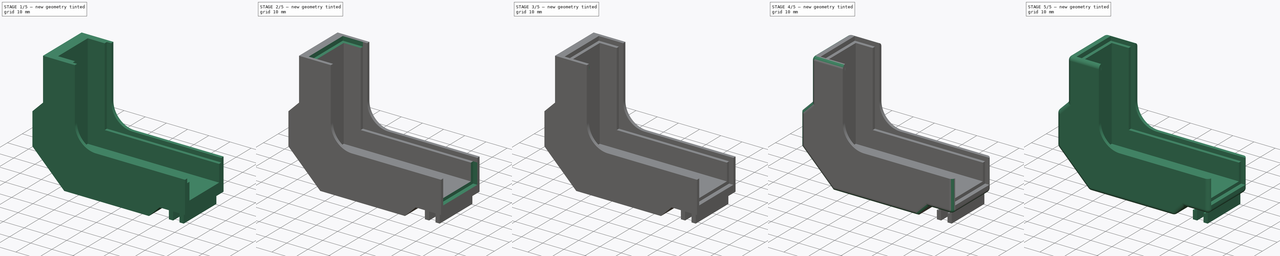
[diagram: build sequence overview — one tinted view per stage of 5, left to right]
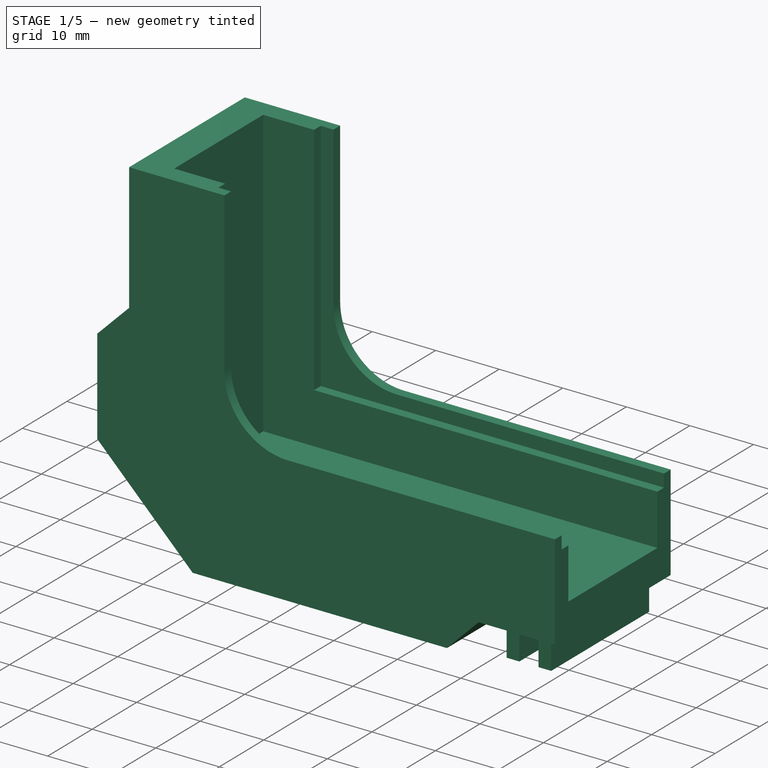
[diagram: stage 1 of 5 — iso view after this stage's code; geometry added in this stage tinted green]
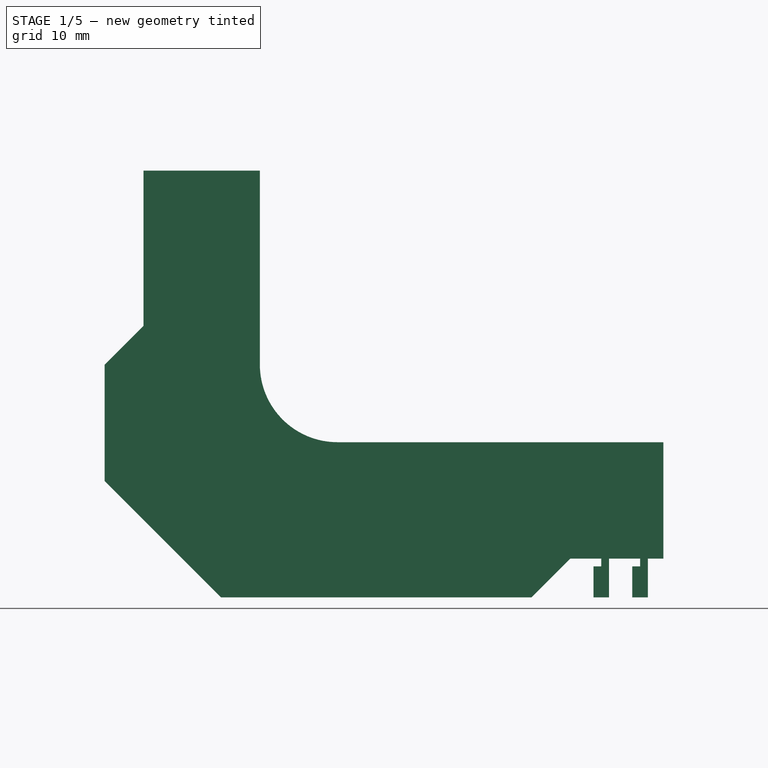
[diagram: stage 1 of 5 — front view after this stage's code; geometry added in this stage tinted green]
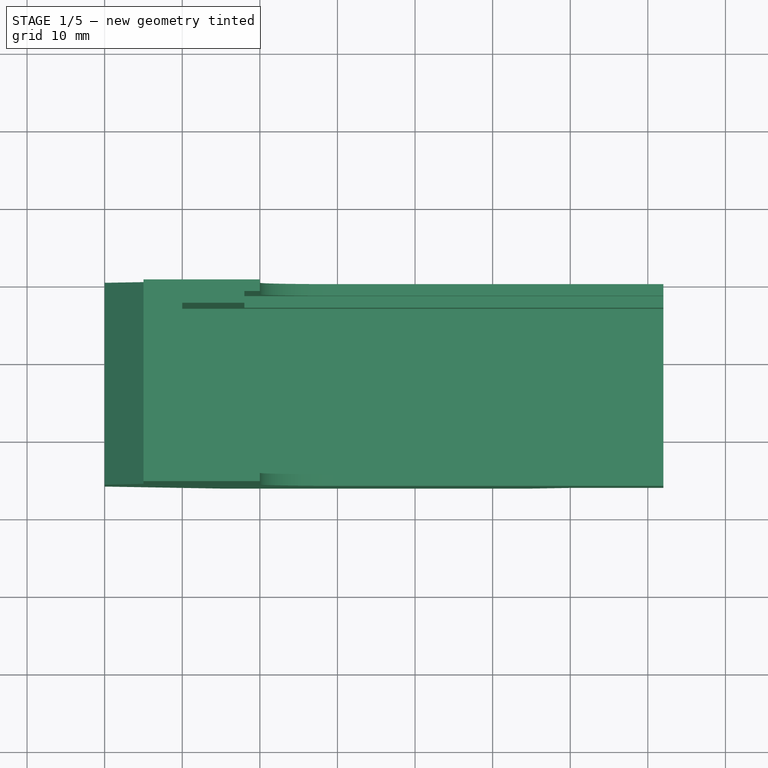
[diagram: stage 1 of 5 — top view after this stage's code; geometry added in this stage tinted green]
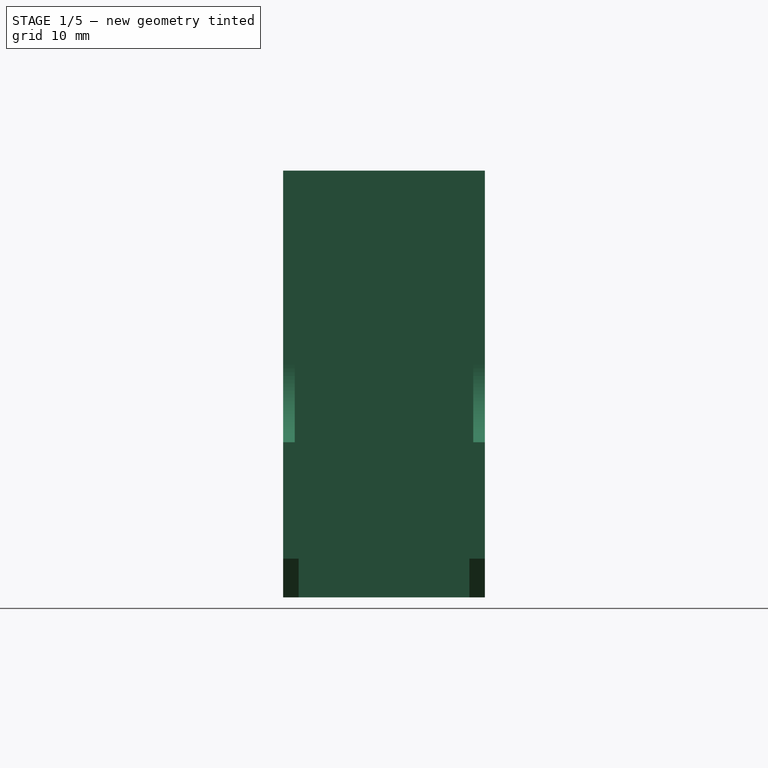
[diagram: stage 1 of 5 — right view after this stage's code; geometry added in this stage tinted green]
FCSTD DOCUMENT  (FreeCAD 0.14R2935 (Git))
Label: shell_corner10n_xrot
License: CC-BY 3.0
LicenseURL: http://creativecommons.org/licenses/by/3.0/
objects: Sketcher::SketchObject×15, PartDesign::Pocket×13, PartDesign::Fillet×8, PartDesign::Pad×1
note: 51 computed .brp shape members not serialized (recipe doc carries the construction recipe); baked Part::Feature solids carry a one-line shape summary decoded from their .brp

FEATURE [Sketcher::SketchObject] Sketch
  Placement = pos=(0,0,0) rot=(1,0,0;1.5708rad)
  sketch-geometry (25):
    g0: LineSegment StartX=5 StartY=55 StartZ=0 EndX=20 EndY=55 EndZ=0
    g1: LineSegment StartX=20 StartY=55 StartZ=0 EndX=20 EndY=30 EndZ=0
    g2: LineSegment StartX=30 StartY=20 StartZ=0 EndX=60 EndY=20 EndZ=0
    g3: LineSegment StartX=60 StartY=5 StartZ=0 EndX=55 EndY=0 EndZ=0
    g4: LineSegment StartX=55 StartY=0 StartZ=0 EndX=15 EndY=0 EndZ=0
    g5: LineSegment StartX=15 StartY=0 StartZ=0 EndX=0 EndY=15 EndZ=0
    g6: LineSegment StartX=0 StartY=15 StartZ=0 EndX=0 EndY=30 EndZ=0
    g7: LineSegment StartX=0 StartY=30 StartZ=0 EndX=5 EndY=35 EndZ=0
    g8: LineSegment StartX=5 StartY=35 StartZ=0 EndX=5 EndY=55 EndZ=0
    g9: ArcOfCircle CenterX=30 CenterY=30 CenterZ=0 NormalX=0 NormalY=0 NormalZ=1 Radius=10 StartAngle=3.14159 EndAngle=4.71239
    g10: LineSegment StartX=60 StartY=20 StartZ=0 EndX=72 EndY=20 EndZ=0
    g11: LineSegment StartX=72 StartY=20 StartZ=0 EndX=72 EndY=5 EndZ=0
    g12: LineSegment StartX=72 StartY=5 StartZ=0 EndX=70 EndY=5 EndZ=0
    g13: LineSegment StartX=60 StartY=5 StartZ=0 EndX=64 EndY=5 EndZ=0
    g14: LineSegment StartX=65 StartY=5 StartZ=0 EndX=65 EndY=0 EndZ=0
    g15: LineSegment StartX=65 StartY=0 StartZ=0 EndX=63 EndY=0 EndZ=0
    g16: LineSegment StartX=63 StartY=0 StartZ=0 EndX=63 EndY=4 EndZ=0
    g17: LineSegment StartX=63 StartY=4 StartZ=0 EndX=64 EndY=4 EndZ=0
    g18: LineSegment StartX=64 StartY=5 StartZ=0 EndX=64 EndY=4 EndZ=0
    g19: LineSegment StartX=70 StartY=5 StartZ=0 EndX=70 EndY=0 EndZ=0
    g20: LineSegment StartX=70 StartY=0 StartZ=0 EndX=68 EndY=0 EndZ=0
    g21: LineSegment StartX=68 StartY=0 StartZ=0 EndX=68 EndY=4 EndZ=0
    g22: LineSegment StartX=69 StartY=5 StartZ=0 EndX=69 EndY=4 EndZ=0
    g23: LineSegment StartX=68 StartY=4 StartZ=0 EndX=69 EndY=4 EndZ=0
    g24: LineSegment StartX=65 StartY=5 StartZ=0 EndX=69 EndY=5 EndZ=0
  constraints (76):
    c: Coincident(g0,g1)
    c: Coincident(g3,g4)
    c: Coincident(g4,g5)
    c: Coincident(g5,g6)
    c: Coincident(g6,g7)
    c: Coincident(g7,g8)
    c: Coincident(g8,g0)
    c: DistanceY(g-1,g5) = 15
    c: DistanceX(g-1,g4) = 15
    c: DistanceX(g4,g3) = 40
    c: DistanceX(g3,g3) = 5
    c: DistanceY(g3,g3) = 5
    c: DistanceY(g3,g13) = 5
    c: DistanceY(g6) = 15
    c: DistanceX(g6,g7) = 5
    c: DistanceY(g6,g7) = 5
    c: DistanceY(g8) = 20
    c: DistanceX(g0) = 15
    c: DistanceX(g5,g4) = 15
    c: DistanceY(g4,g5) = 15
    c: DistanceY(g-1,g3) = 5
    c: DistanceX(g-1,g2) = 60
    c: DistanceX(g-1,g0) = 20
    c: DistanceX(g-1,g7) = 5
    c: Tangent(g1,g9)
    c: Tangent(g2,g9)
    c: DistanceY(g2,g9) = 10
    c: DistanceX(g1,g9) = 10
    c: DistanceX(g9,g0) = -10
    c: DistanceY(g0,g1) = -25
    c: Coincident(g10,g11)
    c: Coincident(g11,g12)
    c: Horizontal(g10)
    c: Horizontal(g12)
    c: Vertical(g11)
    c: Horizontal(g13)
    c: DistanceX(g13) = 4
    c: Coincident(g14,g15)
    c: Coincident(g15,g16)
    c: Horizontal(g15)
    c: Vertical(g14)
    c: Vertical(g16)
    c: DistanceX(g15) = -2
    c: DistanceY(g16) = 4
    c: DistanceY(g14) = -5
    c: Horizontal(g17)
    c: DistanceX(g17) = 1
    c: Coincident(g17,g16)
    c: Vertical(g18)
    c: DistanceY(g18) = -1
    c: Coincident(g18,g17)
    c: Coincident(g18,g13)
    c: Coincident(g13,g3)
    c: Coincident(g19,g20)
    c: Coincident(g20,g21)
    c: Horizontal(g20)
    c: Vertical(g19)
    c: Vertical(g21)
    c: DistanceX(g20) = -2
    c: DistanceY(g21) = 4
    c: DistanceY(g19) = -5
    c: Vertical(g22)
    c: DistanceY(g22) = -1
    c: Horizontal(g23)
    c: DistanceX(g23) = 1
    c: Coincident(g22,g23)
    c: Coincident(g23,g21)
    c: Horizontal(g24)
    c: DistanceX(g24) = 4
    c: Coincident(g24,g14)
    c: Coincident(g22,g24)
    c: DistanceX(g12) = -2
    c: DistanceX(g10) = 12
    c: Coincident(g10,g2)
    c: Coincident(g12,g19)
    c: DistanceY(g11) = -15
FEATURE [PartDesign::Pad] Pad
  Length = 26
  Length2 = 100
  Placement = pos=(0,0,0) rot=(1,0,0;1.5708rad)
  Sketch = -> Sketch
  Type = 0
FEATURE [Sketcher::SketchObject] Sketch001
  Placement = pos=(0,0,0) rot=(1,0,0;3.14159rad)
  Support = -> Pad [Face15]
  sketch-geometry (8):
    g0: LineSegment StartX=62 StartY=2 StartZ=0 EndX=70 EndY=2 EndZ=0
    g1: LineSegment StartX=70 StartY=2 StartZ=0 EndX=70 EndY=-2 EndZ=0
    g2: LineSegment StartX=70 StartY=-2 StartZ=0 EndX=62 EndY=-2 EndZ=0
    g3: LineSegment StartX=62 StartY=-2 StartZ=0 EndX=62 EndY=2 EndZ=0
    g4: LineSegment StartX=62 StartY=28 StartZ=0 EndX=70 EndY=28 EndZ=0
    g5: LineSegment StartX=70 StartY=28 StartZ=0 EndX=70 EndY=24 EndZ=0
    g6: LineSegment StartX=70 StartY=24 StartZ=0 EndX=62 EndY=24 EndZ=0
    g7: LineSegment StartX=62 StartY=24 StartZ=0 EndX=62 EndY=28 EndZ=0
  constraints (24):
    c: Coincident(g0,g1)
    c: Coincident(g1,g2)
    c: Coincident(g2,g3)
    c: Coincident(g3,g0)
    c: Horizontal(g0)
    c: Horizontal(g2)
    c: Vertical(g1)
    c: Vertical(g3)
    c: DistanceX(g0) = 8
    c: DistanceY(g3) = 4
    c: DistanceX(g-1,g0) = 62
    c: DistanceY(g-1,g0) = 2
    c: Coincident(g4,g5)
    c: Coincident(g5,g6)
    c: Coincident(g6,g7)
    c: Coincident(g7,g4)
    c: Horizontal(g4)
    c: Horizontal(g6)
    c: Vertical(g5)
    c: Vertical(g7)
    c: DistanceX(g4) = 8
    c: DistanceY(g7) = 4
    c: DistanceX(g-1,g6) = 62
    c: DistanceY(g-1,g6) = 24
FEATURE [PartDesign::Pocket] Pocket
  Length = 5
  Placement = pos=(0,0,0) rot=(1,0,0;1.5708rad)
  Sketch = -> Sketch001
  Type = 0
FEATURE [Sketcher::SketchObject] Sketch002
  Placement = pos=(72,0,0) rot=(0.707107,0,0.707107;3.14159rad)
  Support = -> Pocket [Face18]
  sketch-geometry (4):
    g0: LineSegment StartX=10 StartY=23 StartZ=0 EndX=70 EndY=23 EndZ=0
    g1: LineSegment StartX=70 StartY=23 StartZ=0 EndX=70 EndY=3 EndZ=0
    g2: LineSegment StartX=70 StartY=3 StartZ=0 EndX=10 EndY=3 EndZ=0
    g3: LineSegment StartX=10 StartY=3 StartZ=0 EndX=10 EndY=23 EndZ=0
  constraints (12):
    c: Coincident(g0,g1)
    c: Coincident(g1,g2)
    c: Coincident(g2,g3)
    c: Coincident(g3,g0)
    c: Horizontal(g0)
    c: Horizontal(g2)
    c: Vertical(g1)
    c: Vertical(g3)
    c: DistanceY(g3) = 20
    c: DistanceX(g0) = 60
    c: DistanceY(g-1,g2) = 3
    c: DistanceX(g-1,g2) = 10
FEATURE [PartDesign::Pocket] Pocket001
  Length = 62
  Placement = pos=(0,0,0) rot=(1,0,0;1.5708rad)
  Sketch = -> Sketch002
  Type = 0
FEATURE [Sketcher::SketchObject] Sketch003
  Placement = pos=(72,0,0) rot=(0.707107,0,0.707107;3.14159rad)
  Support = -> Pocket001 [Face18]
  sketch-geometry (4):
    g0: LineSegment StartX=18 StartY=24.5 StartZ=0 EndX=58 EndY=24.5 EndZ=0
    g1: LineSegment StartX=58 StartY=24.5 StartZ=0 EndX=58 EndY=1.5 EndZ=0
    g2: LineSegment StartX=58 StartY=1.5 StartZ=0 EndX=18 EndY=1.5 EndZ=0
    g3: LineSegment StartX=18 StartY=1.5 StartZ=0 EndX=18 EndY=24.5 EndZ=0
  constraints (12):
    c: Coincident(g0,g1)
    c: Coincident(g1,g2)
    c: Coincident(g2,g3)
    c: Coincident(g3,g0)
    c: Horizontal(g0)
    c: Horizontal(g2)
    c: Vertical(g1)
    c: Vertical(g3)
    c: DistanceX(g0) = 40
    c: DistanceY(g3) = 23
    c: DistanceX(g-1,g2) = 18
    c: DistanceY(g-1,g2) = 1.5
FEATURE [PartDesign::Pocket] Pocket002
  Length = 54
  Placement = pos=(0,0,0) rot=(1,0,0;1.5708rad)
  Sketch = -> Sketch003
  Type = 0
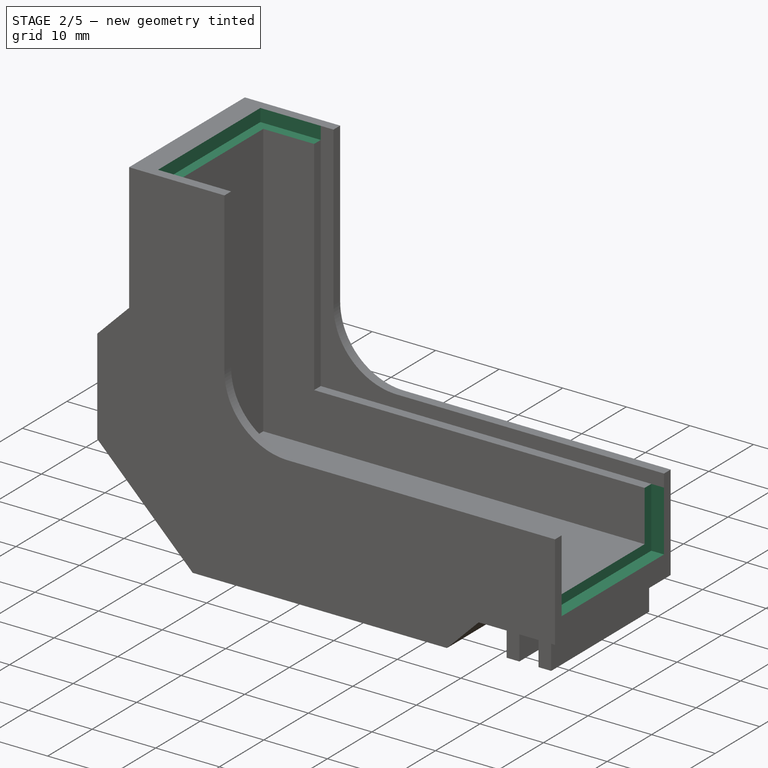
[diagram: stage 2 of 5 — iso view after this stage's code; geometry added in this stage tinted green]
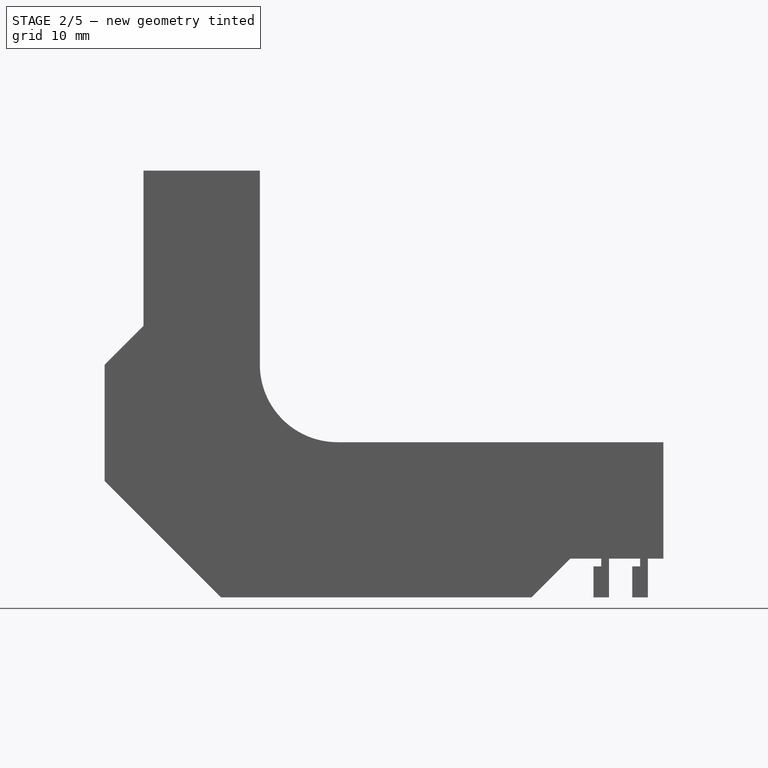
[diagram: stage 2 of 5 — front view after this stage's code; geometry added in this stage tinted green]
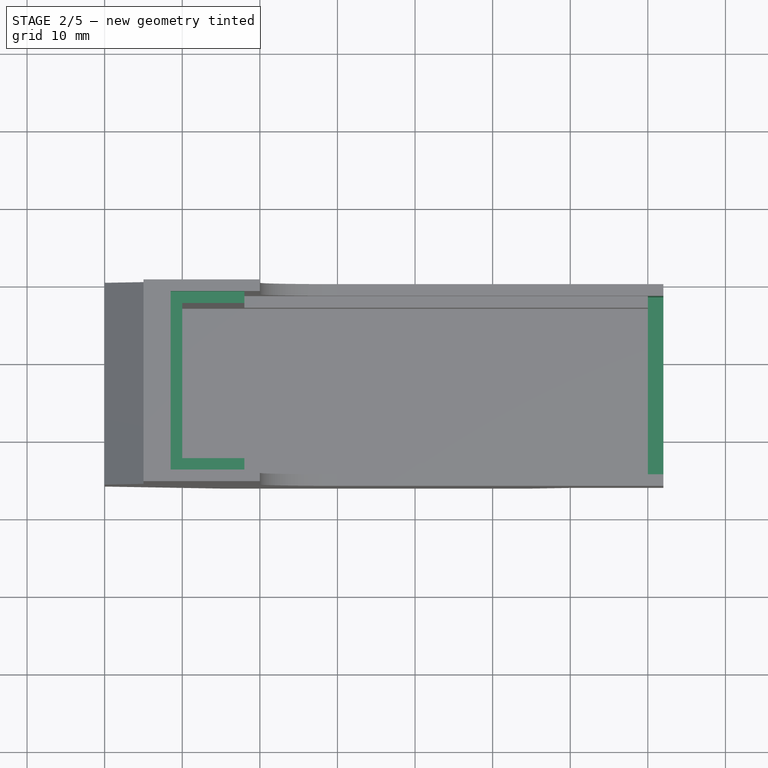
[diagram: stage 2 of 5 — top view after this stage's code; geometry added in this stage tinted green]
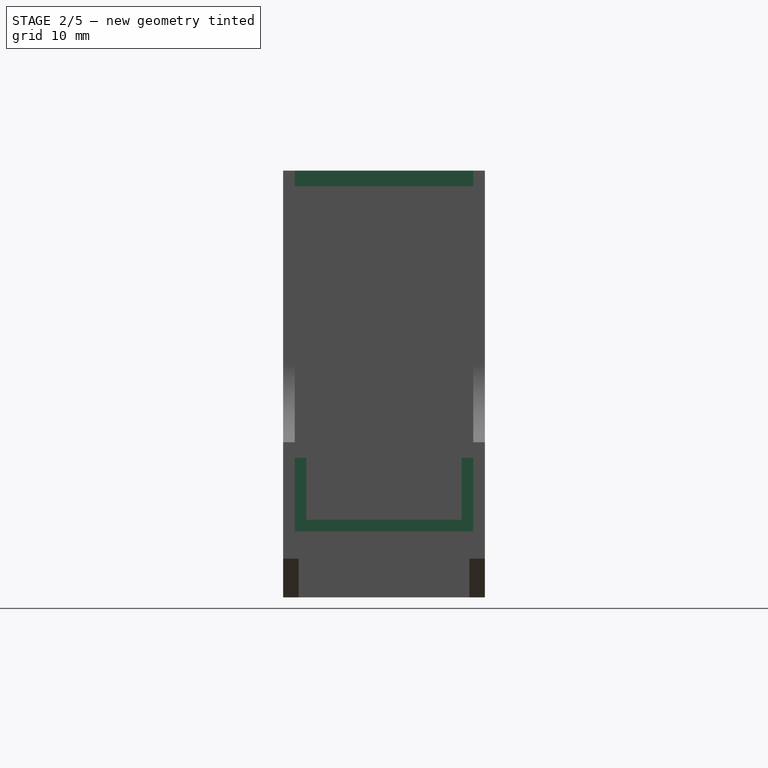
[diagram: stage 2 of 5 — right view after this stage's code; geometry added in this stage tinted green]
FEATURE [Sketcher::SketchObject] Sketch004
  Placement = pos=(72,0,0) rot=(0.707107,0,0.707107;3.14159rad)
  Support = -> Pocket002 [Face18]
  sketch-geometry (4):
    g0: LineSegment StartX=8.5 StartY=24.5 StartZ=0 EndX=28.5 EndY=24.5 EndZ=0
    g1: LineSegment StartX=28.5 StartY=24.5 StartZ=0 EndX=28.5 EndY=1.5 EndZ=0
    g2: LineSegment StartX=28.5 StartY=1.5 StartZ=0 EndX=8.5 EndY=1.5 EndZ=0
    g3: LineSegment StartX=8.5 StartY=1.5 StartZ=0 EndX=8.5 EndY=24.5 EndZ=0
  constraints (12):
    c: Coincident(g0,g1)
    c: Coincident(g1,g2)
    c: Coincident(g2,g3)
    c: Coincident(g3,g0)
    c: Horizontal(g0)
    c: Horizontal(g2)
    c: Vertical(g1)
    c: Vertical(g3)
    c: DistanceY(g3) = 23
    c: DistanceY(g-1,g2) = 1.5
    c: DistanceX(g-1,g2) = 8.5
    c: DistanceX(g0) = 20
FEATURE [PartDesign::Pocket] Pocket003
  Length = 2
  Placement = pos=(0,0,0) rot=(1,0,0;1.5708rad)
  Sketch = -> Sketch004
  Type = 0
FEATURE [Sketcher::SketchObject] Sketch005
  Placement = pos=(-1.68699e-05,0,55) rot=(0,0,1;3.14159rad)
  Support = -> Pocket003 [Face13]
  sketch-geometry (4):
    g0: LineSegment StartX=-28.5 StartY=24.5 StartZ=0 EndX=-8.5 EndY=24.5 EndZ=0
    g1: LineSegment StartX=-8.5 StartY=24.5 StartZ=0 EndX=-8.5 EndY=1.5 EndZ=0
    g2: LineSegment StartX=-8.5 StartY=1.5 StartZ=0 EndX=-28.5 EndY=1.5 EndZ=0
    g3: LineSegment StartX=-28.5 StartY=1.5 StartZ=0 EndX=-28.5 EndY=24.5 EndZ=0
  constraints (12):
    c: Coincident(g0,g1)
    c: Coincident(g1,g2)
    c: Coincident(g2,g3)
    c: Coincident(g3,g0)
    c: Horizontal(g0)
    c: Horizontal(g2)
    c: Vertical(g1)
    c: Vertical(g3)
    c: DistanceY(g1) = -23
    c: DistanceX(g0) = 20
    c: DistanceX(g-1,g1) = -8.5
    c: DistanceY(g-1,g1) = 1.5
FEATURE [PartDesign::Pocket] Pocket004
  Length = 2
  Placement = pos=(0,0,0) rot=(1,0,0;1.5708rad)
  Sketch = -> Sketch005
  Type = 0
FEATURE [Sketcher::SketchObject] Sketch006
  Placement = pos=(5,0,0) rot=(0.707107,0,-0.707107;3.14159rad)
  Support = -> Pocket004 [Face12]
  sketch-geometry (1):
    g0: Circle CenterX=-45 CenterY=13 CenterZ=0 NormalX=0 NormalY=0 NormalZ=1 Radius=6
  constraints (3):
    c: DistanceY(g-1,g0) = 13
    c: DistanceX(g-1,g0) = -45
    c: Radius(g0) = 6
FEATURE [PartDesign::Pocket] Pocket005
  Length = 3
  Placement = pos=(0,0,0) rot=(1,0,0;1.5708rad)
  Sketch = -> Sketch006
  Type = 0
FEATURE [Sketcher::SketchObject] Sketch007
  Placement = pos=(70,0,0) rot=(0.707107,0,0.707107;3.14159rad)
  Support = -> Pocket005 [Face57]
FEATURE [Sketcher::SketchObject] Sketch008
  Placement = pos=(70,0,0) rot=(0.707107,0,0.707107;3.14159rad)
  Support = -> Pocket005 [Face57]
  sketch-geometry (1):
    g0: Circle CenterX=45 CenterY=13 CenterZ=0 NormalX=0 NormalY=0 NormalZ=1 Radius=3
  constraints (3):
    c: DistanceY(g-1,g0) = 13
    c: Radius(g0) = 3
    c: DistanceX(g-1,g0) = 45
FEATURE [PartDesign::Pocket] Pocket006
  Length = 5
  Placement = pos=(0,0,0) rot=(1,0,0;1.5708rad)
  Sketch = -> Sketch008
  Type = 0
FEATURE [Sketcher::SketchObject] Sketch009
  Placement = pos=(0,0,0) rot=(1,0,0;3.14159rad)
  Support = -> Pocket006 [Face3]
  sketch-geometry (1):
    g0: Circle CenterX=45 CenterY=13 CenterZ=0 NormalX=0 NormalY=0 NormalZ=1 Radius=6
  constraints (3):
    c: DistanceX(g-1,g0) = 45
    c: DistanceY(g-1,g0) = 13
    c: Radius(g0) = 6
FEATURE [PartDesign::Pocket] Pocket007
  Length = 3
  Placement = pos=(0,0,0) rot=(1,0,0;1.5708rad)
  Sketch = -> Sketch009
  Type = 0
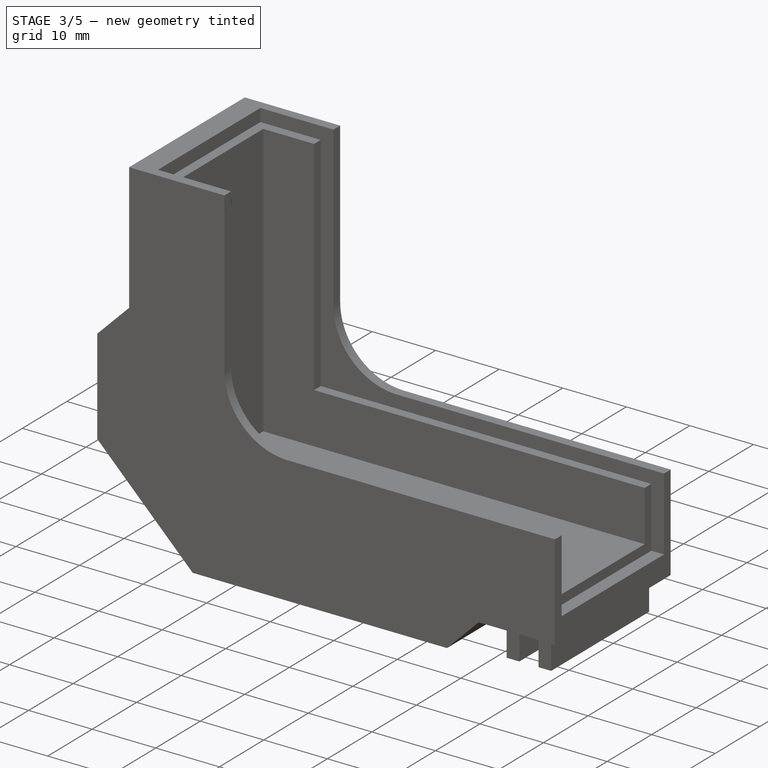
[diagram: stage 3 of 5 — iso view after this stage's code; geometry added in this stage tinted green]
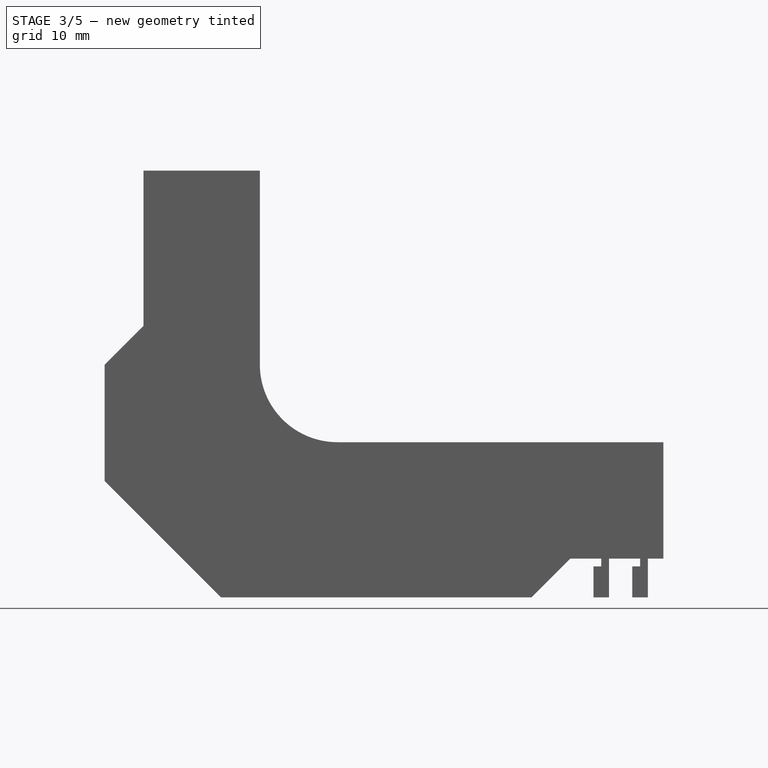
[diagram: stage 3 of 5 — front view after this stage's code; geometry added in this stage tinted green]
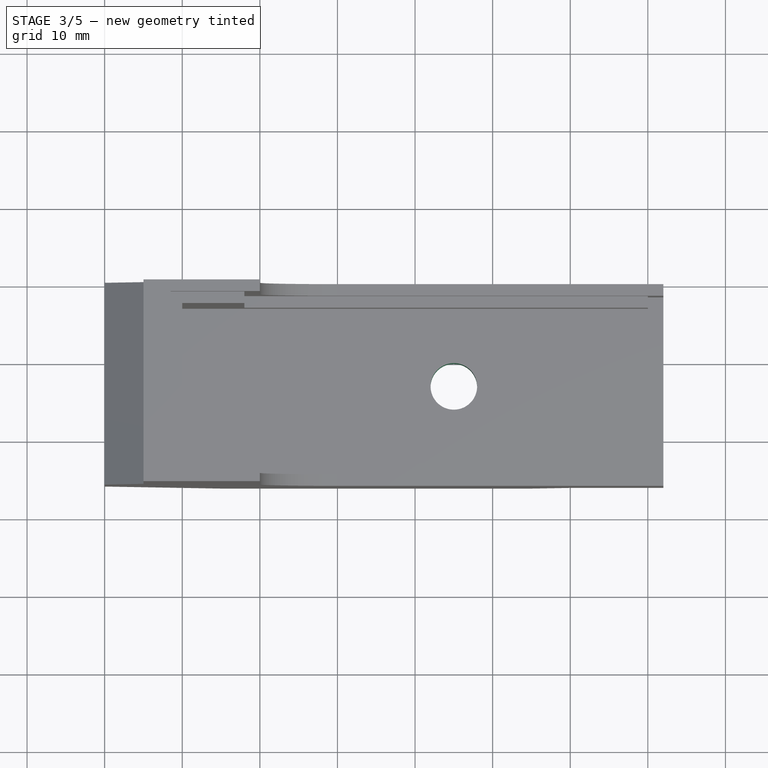
[diagram: stage 3 of 5 — top view after this stage's code; geometry added in this stage tinted green]
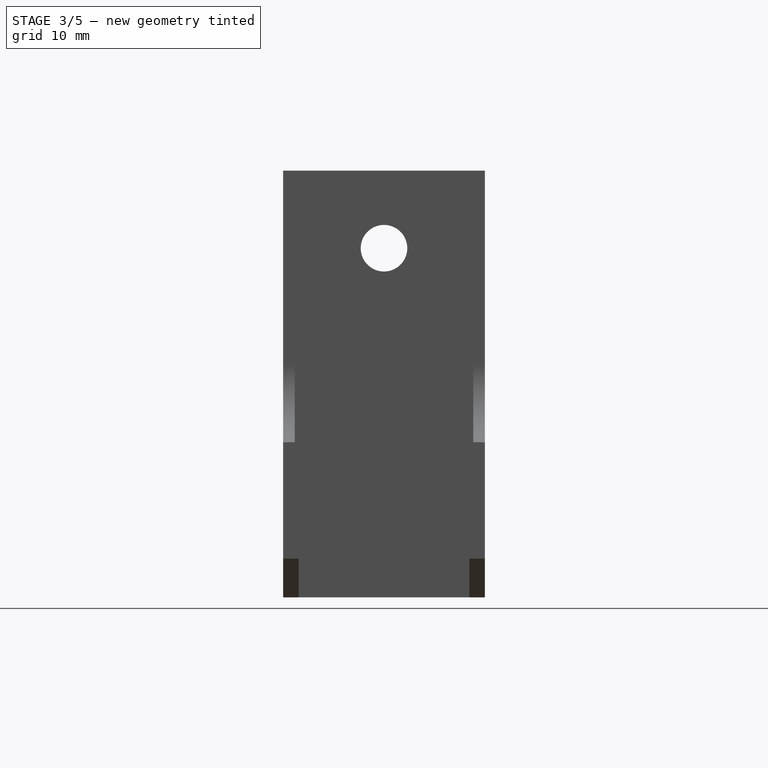
[diagram: stage 3 of 5 — right view after this stage's code; geometry added in this stage tinted green]
FEATURE [Sketcher::SketchObject] Sketch010
  Placement = pos=(0,0,3) rot=(1,0,0;3.14159rad)
  Support = -> Pocket007 [Face34]
  sketch-geometry (1):
    g0: Circle CenterX=45 CenterY=13 CenterZ=0 NormalX=0 NormalY=0 NormalZ=1 Radius=3
  constraints (3):
    c: DistanceX(g-1,g0) = 45
    c: DistanceY(g-1,g0) = 13
    c: Radius(g0) = 3
FEATURE [PartDesign::Pocket] Pocket008
  Length = 15
  Placement = pos=(0,0,0) rot=(1,0,0;1.5708rad)
  Sketch = -> Sketch010
  Type = 0
FEATURE [Sketcher::SketchObject] Sketch011
  Placement = pos=(7.5,0,7.5) rot=(0.92388,0,-0.382683;3.14159rad)
  Support = -> Pocket008 [Face9]
  sketch-geometry (4):
    g0: LineSegment StartX=-20 StartY=19 StartZ=0 EndX=20 EndY=19 EndZ=0
    g1: LineSegment StartX=20 StartY=19 StartZ=0 EndX=20 EndY=7 EndZ=0
    g2: LineSegment StartX=20 StartY=7 StartZ=0 EndX=-20 EndY=7 EndZ=0
    g3: LineSegment StartX=-20 StartY=7 StartZ=0 EndX=-20 EndY=19 EndZ=0
  constraints (12):
    c: Coincident(g0,g1)
    c: Coincident(g1,g2)
    c: Coincident(g2,g3)
    c: Coincident(g3,g0)
    c: Horizontal(g0)
    c: Horizontal(g2)
    c: Vertical(g1)
    c: Vertical(g3)
    c: DistanceY(g3) = 12
    c: DistanceY(g-1,g2) = 7
    c: DistanceX(g0,g0) = 40
    c: DistanceX(g-1,g2) = -20
FEATURE [PartDesign::Pocket] Pocket009
  Length = 2
  Placement = pos=(0,0,0) rot=(1,0,0;1.5708rad)
  Sketch = -> Sketch011
  Type = 0
FEATURE [Sketcher::SketchObject] Sketch012
  Placement = pos=(8,0,0) rot=(0.707107,0,-0.707107;3.14159rad)
  Support = -> Pocket009 [Face60]
  sketch-geometry (1):
    g0: Circle CenterX=-45 CenterY=13 CenterZ=0 NormalX=0 NormalY=0 NormalZ=1 Radius=3
  constraints (3):
    c: DistanceY(g-1,g0) = 13
    c: DistanceX(g-1,g0) = -45
    c: Radius(g0) = 3
FEATURE [PartDesign::Pocket] Pocket010
  Length = 10
  Placement = pos=(0,0,0) rot=(1,0,0;1.5708rad)
  Sketch = -> Sketch012
  Type = 0
FEATURE [Sketcher::SketchObject] Sketch013
  Placement = pos=(0,0,0) rot=(1,0,0;3.14159rad)
  Support = -> Pocket010 [Face3]
  sketch-geometry (4):
    g0: LineSegment StartX=5 StartY=19 StartZ=0 EndX=35 EndY=19 EndZ=0
    g1: LineSegment StartX=35 StartY=19 StartZ=0 EndX=35 EndY=7 EndZ=0
    g2: LineSegment StartX=35 StartY=7 StartZ=0 EndX=5 EndY=7 EndZ=0
    g3: LineSegment StartX=5 StartY=7 StartZ=0 EndX=5 EndY=19 EndZ=0
  constraints (12):
    c: Coincident(g0,g1)
    c: Coincident(g1,g2)
    c: Coincident(g2,g3)
    c: Coincident(g3,g0)
    c: Horizontal(g0)
    c: Horizontal(g2)
    c: Vertical(g1)
    c: Vertical(g3)
    c: DistanceY(g1) = -12
    c: DistanceX(g0) = 30
    c: DistanceY(g-1,g1) = 7
    c: DistanceX(g-1,g1) = 35
FEATURE [PartDesign::Pocket] Pocket011
  Length = 2
  Placement = pos=(0,0,0) rot=(1,0,0;1.5708rad)
  Sketch = -> Sketch013
  Type = 0
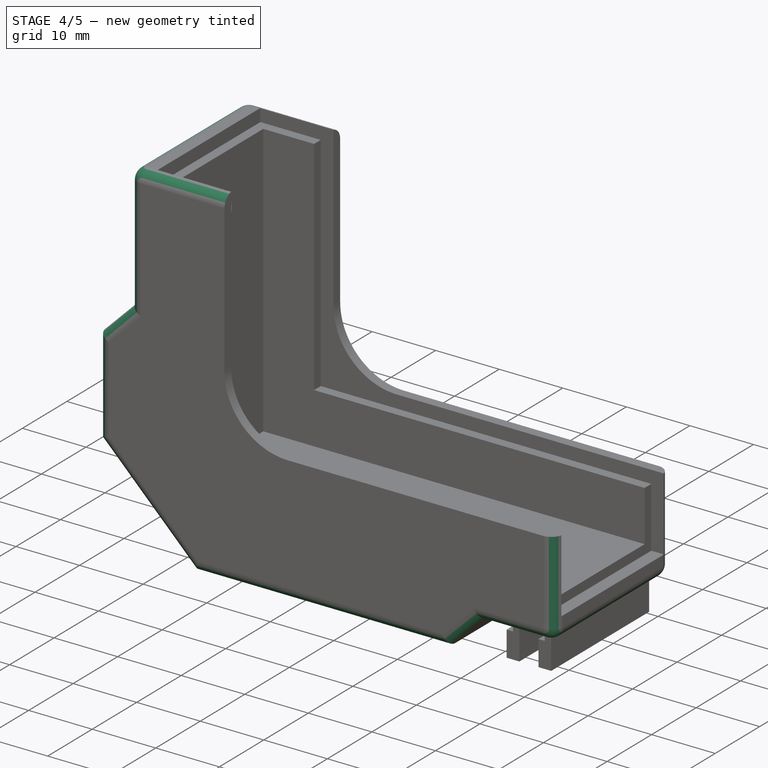
[diagram: stage 4 of 5 — iso view after this stage's code; geometry added in this stage tinted green]
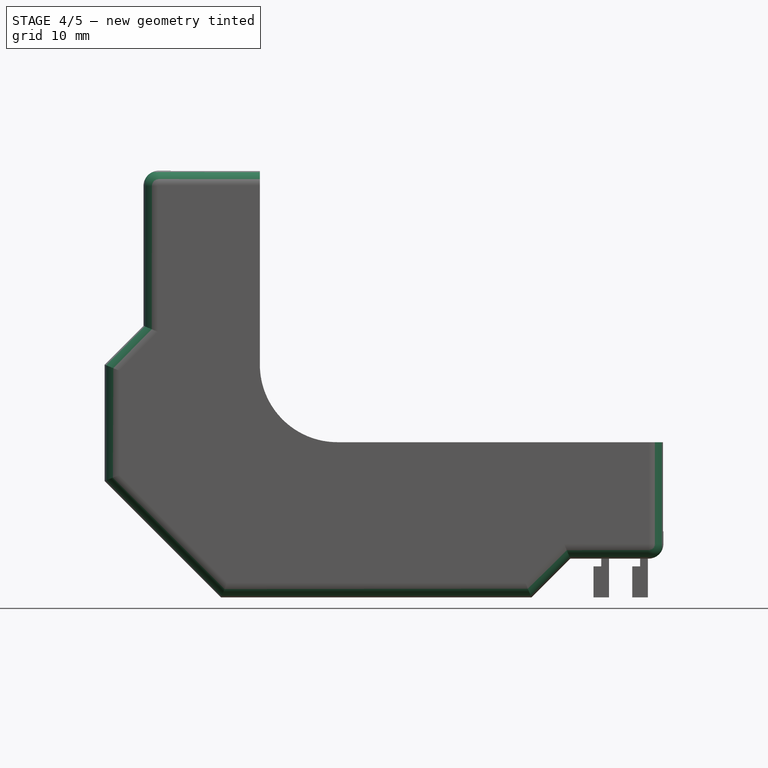
[diagram: stage 4 of 5 — front view after this stage's code; geometry added in this stage tinted green]
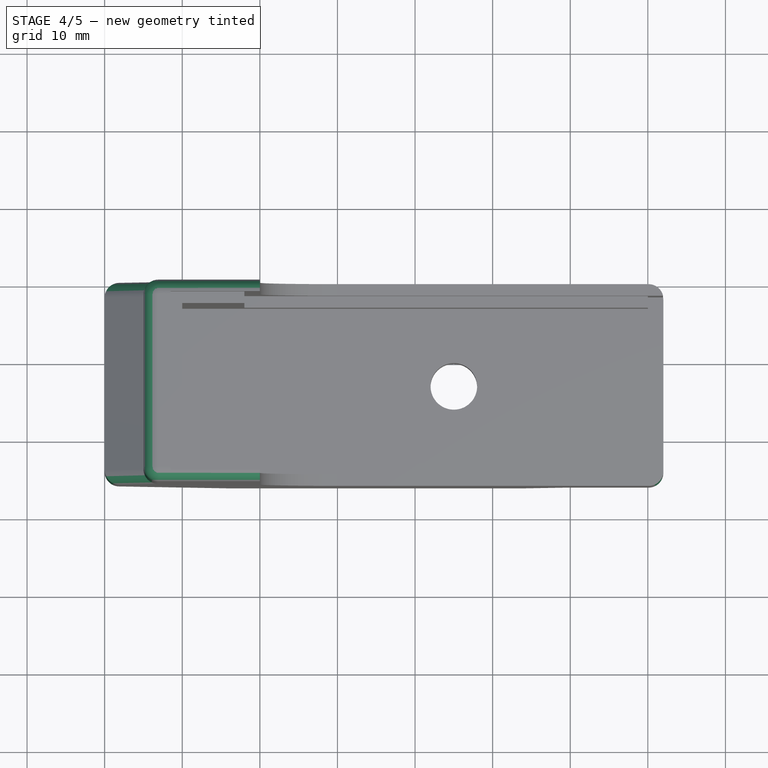
[diagram: stage 4 of 5 — top view after this stage's code; geometry added in this stage tinted green]
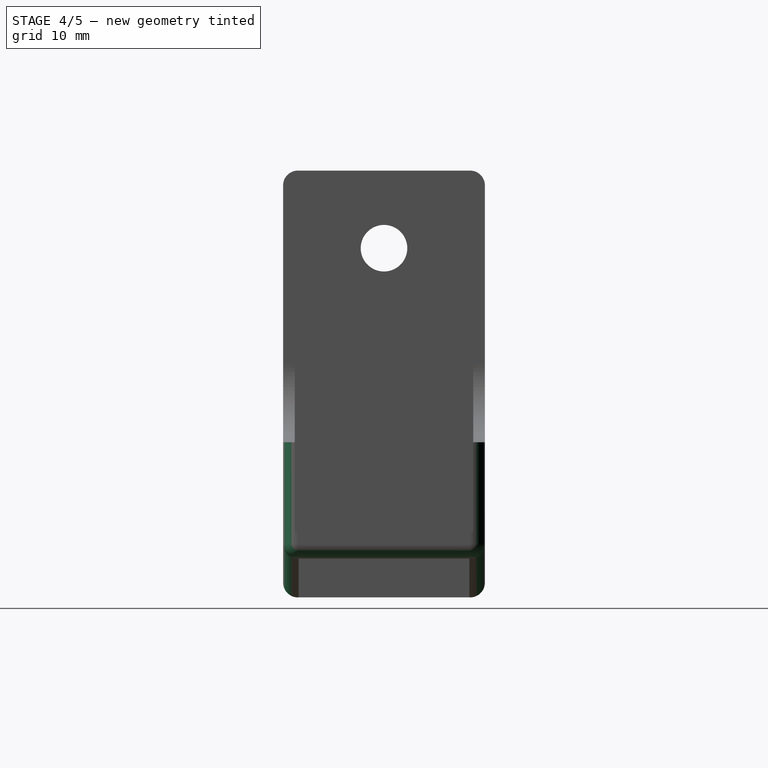
[diagram: stage 4 of 5 — right view after this stage's code; geometry added in this stage tinted green]
FEATURE [Sketcher::SketchObject] Sketch014
  Placement = pos=(0,0,0) rot=(-0.707107,0,0.707107;3.14159rad)
  Support = -> Pocket011 [Face17]
  sketch-geometry (4):
    g0: LineSegment StartX=-27 StartY=19 StartZ=0 EndX=-7 EndY=19 EndZ=0
    g1: LineSegment StartX=-7 StartY=19 StartZ=0 EndX=-7 EndY=7 EndZ=0
    g2: LineSegment StartX=-7 StartY=7 StartZ=0 EndX=-27 EndY=7 EndZ=0
    g3: LineSegment StartX=-27 StartY=7 StartZ=0 EndX=-27 EndY=19 EndZ=0
  constraints (12):
    c: Coincident(g0,g1)
    c: Coincident(g1,g2)
    c: Coincident(g2,g3)
    c: Coincident(g3,g0)
    c: Horizontal(g0)
    c: Horizontal(g2)
    c: Vertical(g1)
    c: Vertical(g3)
    c: DistanceY(g3) = 12
    c: DistanceX(g0) = 20
    c: DistanceY(g-1,g2) = 7
    c: DistanceX(g-1,g2) = -27
FEATURE [PartDesign::Pocket] Pocket012
  Length = 2
  Placement = pos=(0,0,0) rot=(1,0,0;1.5708rad)
  Sketch = -> Sketch014
  Type = 0
FEATURE [PartDesign::Fillet] Fillet
  Base = -> Pocket012 [Edge102]
  Placement = pos=(0,0,0) rot=(1,0,0;1.5708rad)
  Radius = 1.9
FEATURE [PartDesign::Fillet] Fillet001
  Base = -> Fillet [Edge58]
  Placement = pos=(0,0,0) rot=(1,0,0;1.5708rad)
  Radius = 2
FEATURE [PartDesign::Fillet] Fillet002
  Base = -> Fillet001 [Edge77,Edge101,Edge104,Edge103,Edge102,Edge89,Edge79,Edge73,Edge100,Edge44,Edge41,Edge36,Edge31]
  Placement = pos=(0,0,0) rot=(1,0,0;1.5708rad)
  Radius = 1.9
FEATURE [PartDesign::Fillet] Fillet003
  Base = -> Fillet002 [Edge27,Edge31,Edge33,Edge34,Edge32,Edge30,Edge28,Edge26,Edge24,Edge22,Edge20,Edge18,Edge9]
  Placement = pos=(0,0,0) rot=(1,0,0;1.5708rad)
  Radius = 1.9
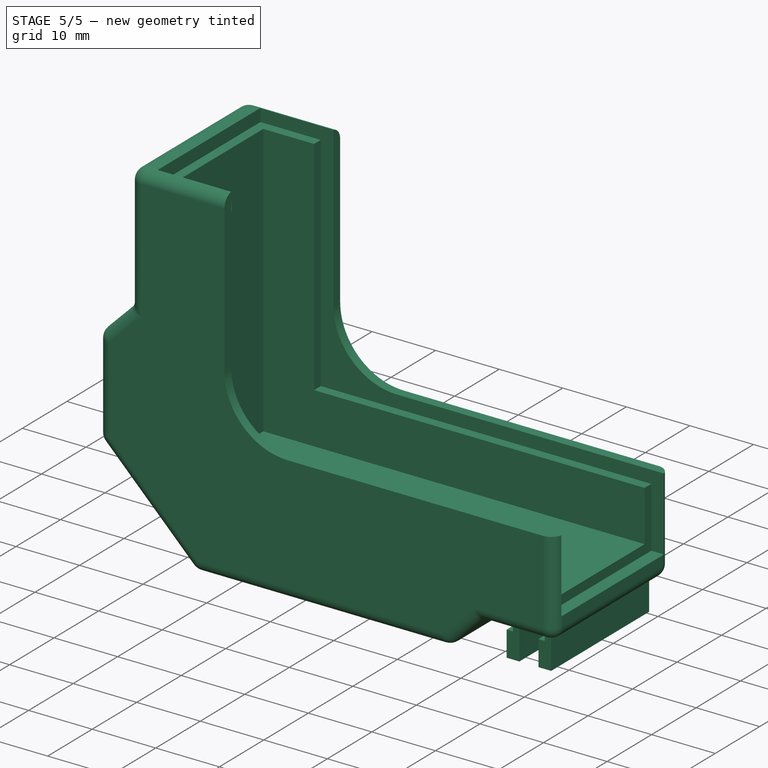
[diagram: stage 5 of 5 — iso view after this stage's code; geometry added in this stage tinted green]
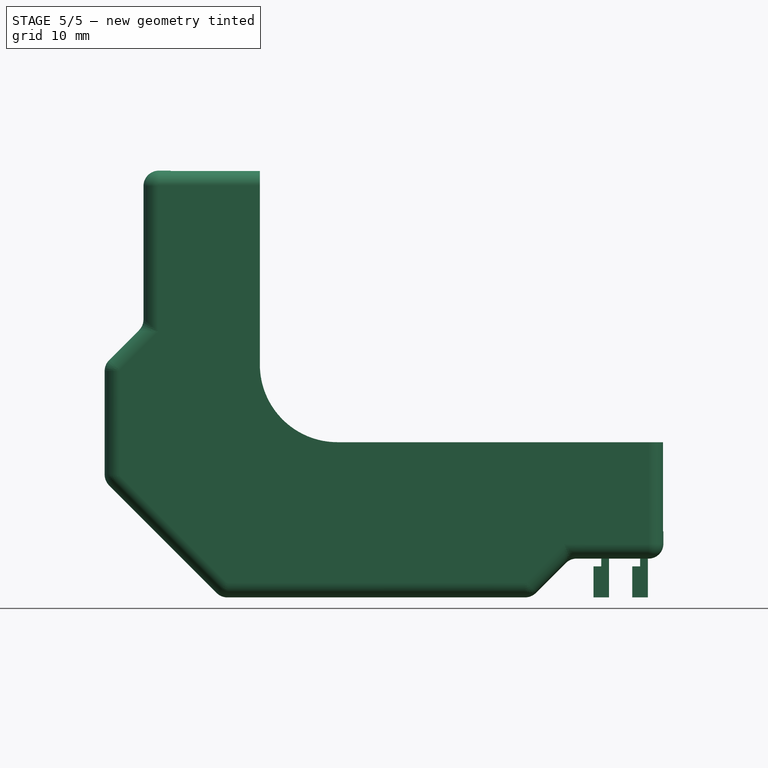
[diagram: stage 5 of 5 — front view after this stage's code; geometry added in this stage tinted green]
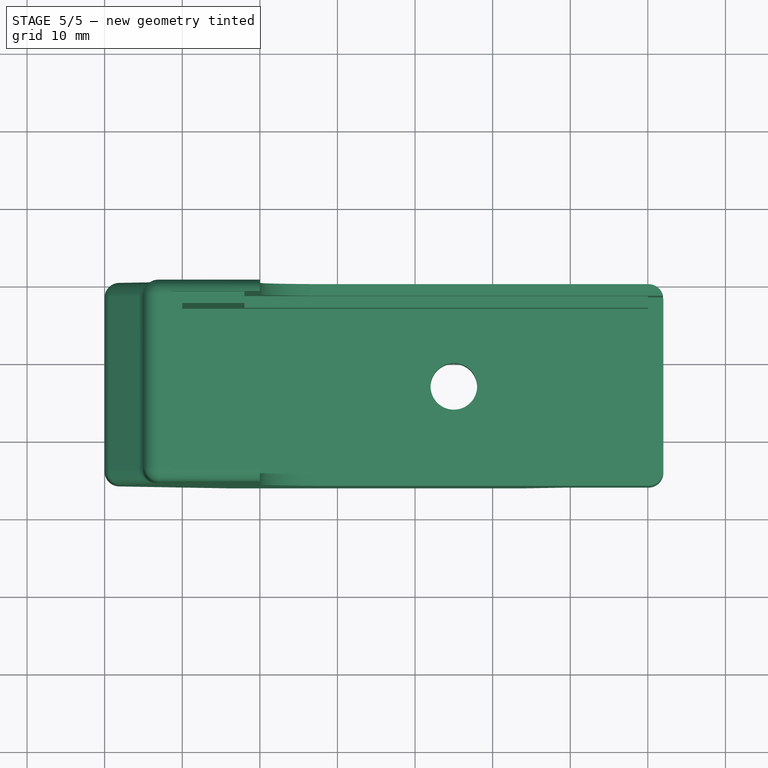
[diagram: stage 5 of 5 — top view after this stage's code; geometry added in this stage tinted green]
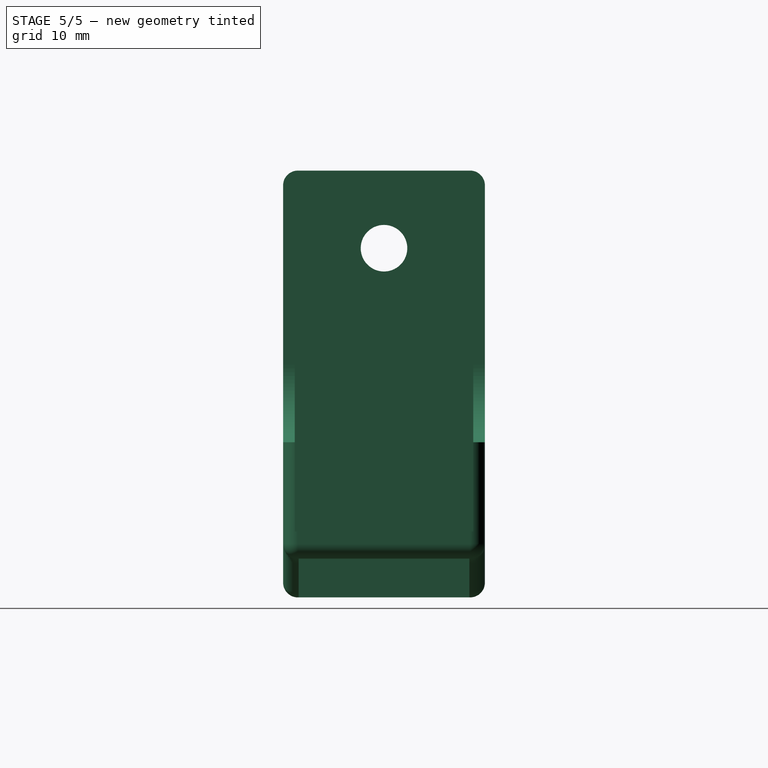
[diagram: stage 5 of 5 — right view after this stage's code; geometry added in this stage tinted green]
FEATURE [PartDesign::Fillet] Fillet004
  Base = -> Fillet003 [Edge84,Edge176,Edge175,Edge197,Edge204,Edge146,Edge141,Edge135,Edge99,Edge105]
  Placement = pos=(0,0,0) rot=(1,0,0;1.5708rad)
  Radius = 2
FEATURE [PartDesign::Fillet] Fillet005
  Base = -> Fillet004 [Edge208,Edge167,Edge106]
  Placement = pos=(0,0,0) rot=(1,0,0;1.5708rad)
  Radius = 2
FEATURE [PartDesign::Fillet] Fillet006
  Base = -> Fillet005 [Edge108,Edge206,Edge63]
  Placement = pos=(0,0,0) rot=(1,0,0;1.5708rad)
  Radius = 2
FEATURE [PartDesign::Fillet] Fillet007
  Base = -> Fillet006 [Edge141,Edge58,Edge220]
  Placement = pos=(0,0,0) rot=(1,0,0;1.5708rad)
  Radius = 2
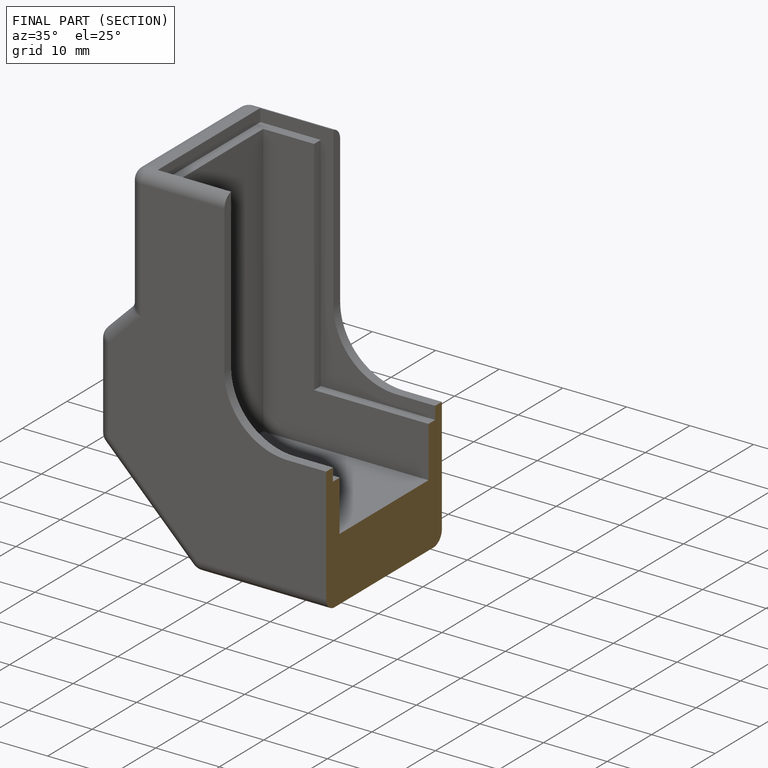
[diagram: finished part — half-section view (interior)]
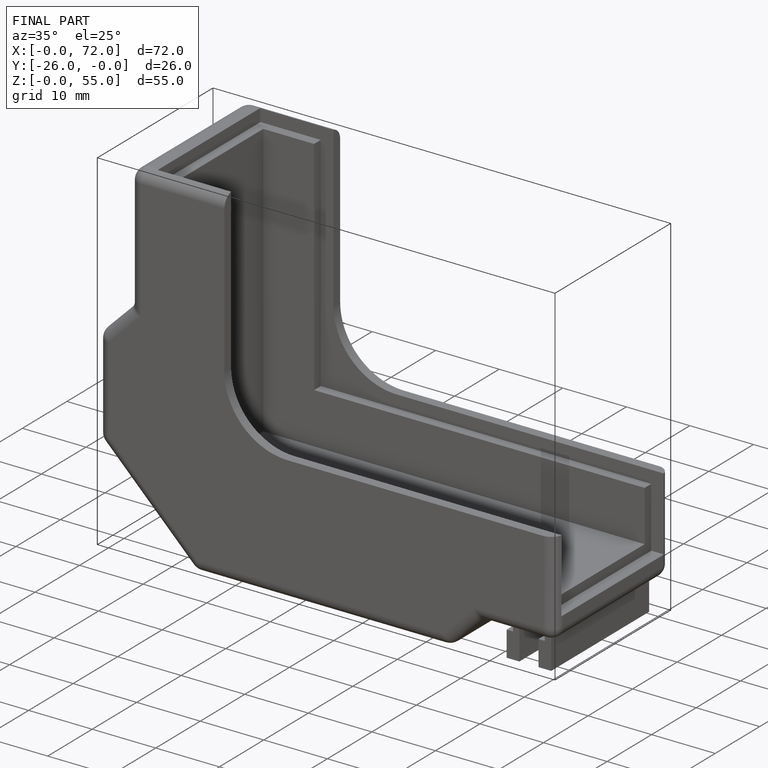
[diagram: finished part — iso view with bounding-box wireframe]
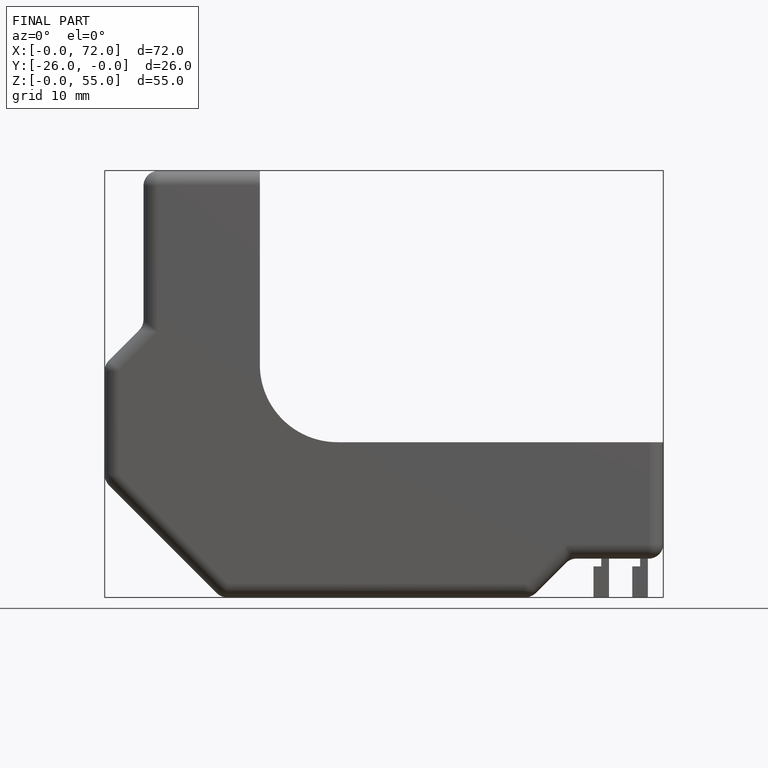
[diagram: finished part — front view with bounding-box wireframe]
